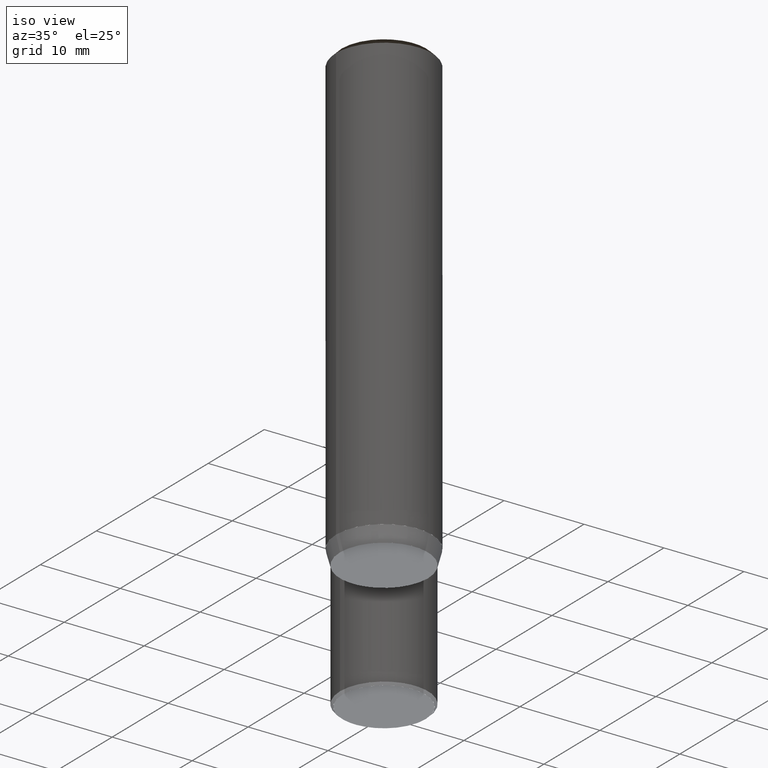
[diagram: clean part render]
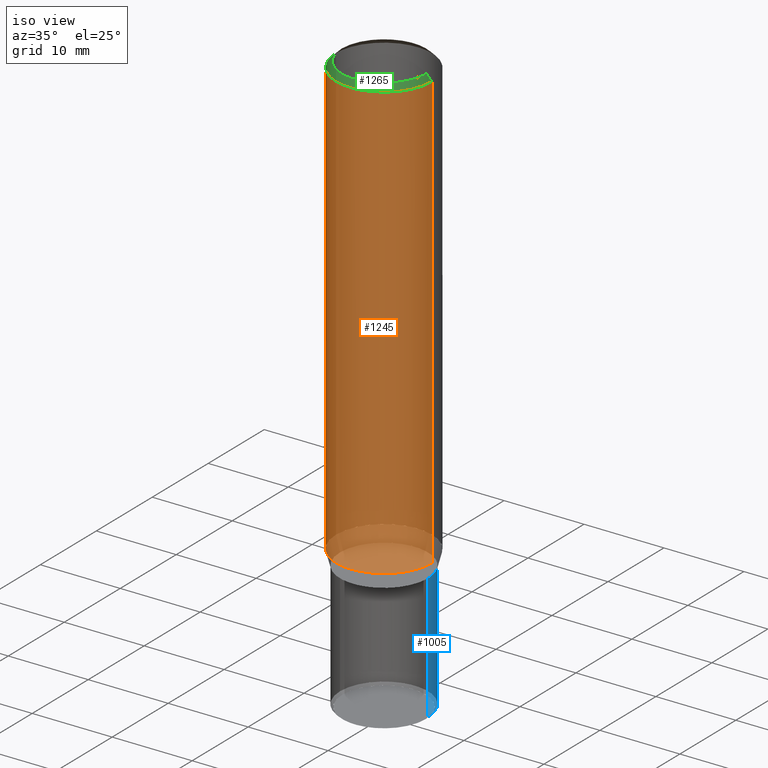
[diagram: same view with three faces highlighted in distinct colors, each labeled with its STEP entity id]
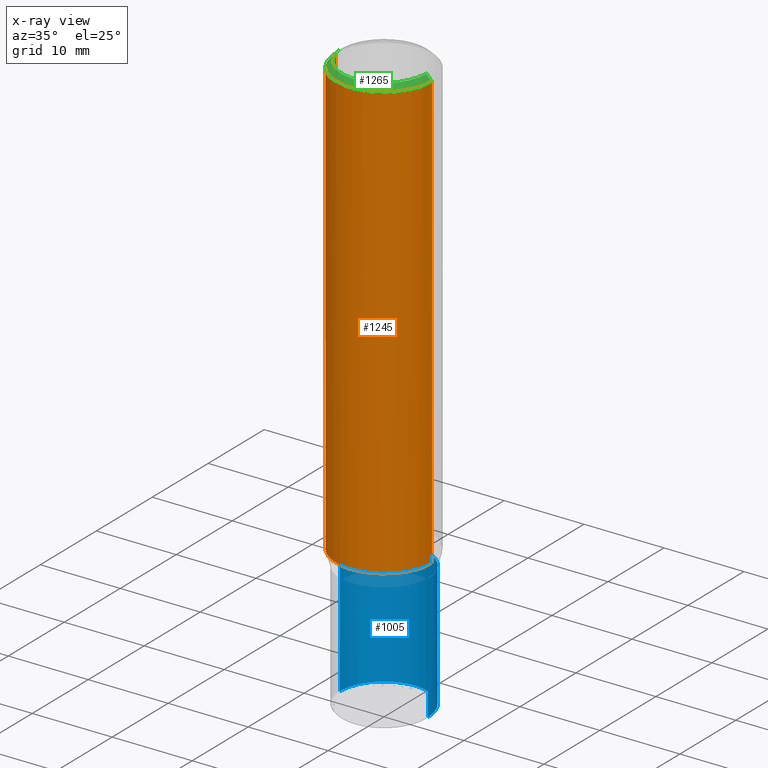
[diagram: x-ray of the same camera — body ghosted, the three highlighted faces saturated]
A machine part, iso view with three faces highlighted in distinct colors.
The next image is the same camera in x-ray (body ghosted, the three faces saturated) — at least one of them is partly hidden behind the body in this view.
Their STEP definitions:

[orange] entity #1245 — the highlighted face is a freeform B-spline surface patch.
#918=CARTESIAN_POINT('',(6.0,0.0,-0.0));
#922=CARTESIAN_POINT('',(-6.0,0.0,-0.0));
#923=CARTESIAN_POINT('',(6.0,0.0,54.43398022));
#927=CARTESIAN_POINT('',(-6.0,0.0,54.43398022));
#934=CARTESIAN_POINT('',(-6.0,-6.0,-0.0));
#935=CARTESIAN_POINT('',(0.0,-6.0,-0.0));
#936=CARTESIAN_POINT('',(6.0,-6.0,-0.0));
#937=CARTESIAN_POINT('',(-6.0,-6.0,54.43398022));
#938=CARTESIAN_POINT('',(0.0,-6.0,54.43398022));
#939=CARTESIAN_POINT('',(6.0,-6.0,54.43398022));
#1226=(
BOUNDED_SURFACE()
B_SPLINE_SURFACE(1,2,(
(#922,#934,#935,#936,#918),
(#927,#937,#938,#939,#923)
), .UNSPECIFIED.,.F.,.F.,.F.)
B_SPLINE_SURFACE_WITH_KNOTS((2,2),(3,2,3),(
0.0,1.0),(
0.0,0.5,1.0), .UNSPECIFIED.)
GEOMETRIC_REPRESENTATION_ITEM()
RATIONAL_B_SPLINE_SURFACE(((1.0,0.707106781187,1.0,0.707106781187,1.0),
(1.0,0.707106781187,1.0,0.707106781187,1.0)
))
REPRESENTATION_ITEM('')
SURFACE()
);
#1227=(
BOUNDED_CURVE()
B_SPLINE_CURVE(1,(#927,#922),.UNSPECIFIED.,.F.,.F.)
B_SPLINE_CURVE_WITH_KNOTS((2,2),
(0.0,1.0),.UNSPECIFIED.)
CURVE()
GEOMETRIC_REPRESENTATION_ITEM()
RATIONAL_B_SPLINE_CURVE((1.0,1.0))
REPRESENTATION_ITEM('')
);
#1228=(
BOUNDED_CURVE()
B_SPLINE_CURVE(2,(#922,#934,#935,#936,#918),.UNSPECIFIED.,.F.,.F.)
B_SPLINE_CURVE_WITH_KNOTS((3,2,3),
(0.0,0.5,1.0),.UNSPECIFIED.)
CURVE()
GEOMETRIC_REPRESENTATION_ITEM()
RATIONAL_B_SPLINE_CURVE((1.0,0.707106781187,1.0,0.707106781187,1.0))
REPRESENTATION_ITEM('')
);
#1229=(
BOUNDED_CURVE()
B_SPLINE_CURVE(1,(#918,#923),.UNSPECIFIED.,.F.,.F.)
B_SPLINE_CURVE_WITH_KNOTS((2,2),
(0.0,1.0),.UNSPECIFIED.)
CURVE()
GEOMETRIC_REPRESENTATION_ITEM()
RATIONAL_B_SPLINE_CURVE((1.0,1.0))
REPRESENTATION_ITEM('')
);
#1230=(
BOUNDED_CURVE()
B_SPLINE_CURVE(2,(#923,#939,#938,#937,#927),.UNSPECIFIED.,.F.,.F.)
B_SPLINE_CURVE_WITH_KNOTS((3,2,3),
(0.0,0.5,1.0),.UNSPECIFIED.)
CURVE()
GEOMETRIC_REPRESENTATION_ITEM()
RATIONAL_B_SPLINE_CURVE((1.0,0.707106781187,1.0,0.707106781187,1.0))
REPRESENTATION_ITEM('')
);
#1231=VERTEX_POINT('',#918);
#1232=VERTEX_POINT('',#922);
#1233=VERTEX_POINT('',#923);
#1234=VERTEX_POINT('',#927);
#1235=EDGE_CURVE('',#1234,#1232,#1227,.T.);
#1236=EDGE_CURVE('',#1232,#1231,#1228,.T.);
#1237=EDGE_CURVE('',#1231,#1233,#1229,.T.);
#1238=EDGE_CURVE('',#1233,#1234,#1230,.T.);
#1239=ORIENTED_EDGE('',*,*,#1235,.T.);
#1240=ORIENTED_EDGE('',*,*,#1236,.T.);
#1241=ORIENTED_EDGE('',*,*,#1237,.T.);
#1242=ORIENTED_EDGE('',*,*,#1238,.T.);
#1243=EDGE_LOOP('',(#1239,#1240,#1241,#1242));
#1244=FACE_OUTER_BOUND('',#1243,.T.);
#1245=ADVANCED_FACE('',(#1244),#1226,.T.);

[blue] entity #1005 — the highlighted face is a freeform B-spline surface patch.
#898=CARTESIAN_POINT('',(5.5,0.0,-17.56601978));
#899=CARTESIAN_POINT('',(5.5,5.5,-17.56601978));
#900=CARTESIAN_POINT('',(0.0,5.5,-17.56601978));
#901=CARTESIAN_POINT('',(-5.5,5.5,-17.56601978));
#902=CARTESIAN_POINT('',(-5.5,0.0,-17.56601978));
#903=CARTESIAN_POINT('',(5.5,0.0,-1.86601978));
#904=CARTESIAN_POINT('',(5.5,5.5,-1.86601978));
#905=CARTESIAN_POINT('',(0.0,5.5,-1.86601978));
#906=CARTESIAN_POINT('',(-5.5,5.5,-1.86601978));
#907=CARTESIAN_POINT('',(-5.5,0.0,-1.86601978));
#986=(
BOUNDED_SURFACE()
B_SPLINE_SURFACE(1,2,(
(#898,#899,#900,#901,#902),
(#903,#904,#905,#906,#907)
), .UNSPECIFIED.,.F.,.F.,.F.)
B_SPLINE_SURFACE_WITH_KNOTS((2,2),(3,2,3),(
0.0,1.0),(
0.0,0.5,1.0), .UNSPECIFIED.)
GEOMETRIC_REPRESENTATION_ITEM()
RATIONAL_B_SPLINE_SURFACE(((1.0,0.707106781187,1.0,0.707106781187,1.0),
(1.0,0.707106781187,1.0,0.707106781187,1.0)
))
REPRESENTATION_ITEM('')
SURFACE()
);
#987=(
BOUNDED_CURVE()
B_SPLINE_CURVE(2,(#903,#904,#905,#906,#907),.UNSPECIFIED.,.F.,.F.)
B_SPLINE_CURVE_WITH_KNOTS((3,2,3),
(0.0,0.5,1.0),.UNSPECIFIED.)
CURVE()
GEOMETRIC_REPRESENTATION_ITEM()
RATIONAL_B_SPLINE_CURVE((1.0,0.707106781187,1.0,0.707106781187,1.0))
REPRESENTATION_ITEM('')
);
#988=(
BOUNDED_CURVE()
B_SPLINE_CURVE(1,(#907,#902),.UNSPECIFIED.,.F.,.F.)
B_SPLINE_CURVE_WITH_KNOTS((2,2),
(0.0,1.0),.UNSPECIFIED.)
CURVE()
GEOMETRIC_REPRESENTATION_ITEM()
RATIONAL_B_SPLINE_CURVE((1.0,1.0))
REPRESENTATION_ITEM('')
);
#989=(
BOUNDED_CURVE()
B_SPLINE_CURVE(2,(#902,#901,#900,#899,#898),.UNSPECIFIED.,.F.,.F.)
B_SPLINE_CURVE_WITH_KNOTS((3,2,3),
(0.0,0.5,1.0),.UNSPECIFIED.)
CURVE()
GEOMETRIC_REPRESENTATION_ITEM()
RATIONAL_B_SPLINE_CURVE((1.0,0.707106781187,1.0,0.707106781187,1.0))
REPRESENTATION_ITEM('')
);
#990=(
BOUNDED_CURVE()
B_SPLINE_CURVE(1,(#898,#903),.UNSPECIFIED.,.F.,.F.)
B_SPLINE_CURVE_WITH_KNOTS((2,2),
(0.0,1.0),.UNSPECIFIED.)
CURVE()
GEOMETRIC_REPRESENTATION_ITEM()
RATIONAL_B_SPLINE_CURVE((1.0,1.0))
REPRESENTATION_ITEM('')
);
#991=VERTEX_POINT('',#898);
#992=VERTEX_POINT('',#902);
#993=VERTEX_POINT('',#903);
#994=VERTEX_POINT('',#907);
#995=EDGE_CURVE('',#993,#994,#987,.T.);
#996=EDGE_CURVE('',#994,#992,#988,.T.);
#997=EDGE_CURVE('',#992,#991,#989,.T.);
#998=EDGE_CURVE('',#991,#993,#990,.T.);
#999=ORIENTED_EDGE('',*,*,#995,.T.);
#1000=ORIENTED_EDGE('',*,*,#996,.T.);
#1001=ORIENTED_EDGE('',*,*,#997,.T.);
#1002=ORIENTED_EDGE('',*,*,#998,.T.);
#1003=EDGE_LOOP('',(#999,#1000,#1001,#1002));
#1004=FACE_OUTER_BOUND('',#1003,.T.);
#1005=ADVANCED_FACE('',(#1004),#986,.T.);

[green] entity #1265 — the highlighted face is a freeform B-spline surface patch.
#923=CARTESIAN_POINT('',(6.0,0.0,54.43398022));
#927=CARTESIAN_POINT('',(-6.0,0.0,54.43398022));
#928=CARTESIAN_POINT('',(5.3,0.0,55.13398022));
#932=CARTESIAN_POINT('',(-5.3,0.0,55.13398022));
#937=CARTESIAN_POINT('',(-6.0,-6.0,54.43398022));
#938=CARTESIAN_POINT('',(0.0,-6.0,54.43398022));
#939=CARTESIAN_POINT('',(6.0,-6.0,54.43398022));
#940=CARTESIAN_POINT('',(-5.3,-5.3,55.13398022));
#941=CARTESIAN_POINT('',(0.0,-5.3,55.13398022));
#942=CARTESIAN_POINT('',(5.3,-5.3,55.13398022));
#1246=(
BOUNDED_SURFACE()
B_SPLINE_SURFACE(1,2,(
(#927,#937,#938,#939,#923),
(#932,#940,#941,#942,#928)
), .UNSPECIFIED.,.F.,.F.,.F.)
B_SPLINE_SURFACE_WITH_KNOTS((2,2),(3,2,3),(
0.0,1.0),(
0.0,0.5,1.0), .UNSPECIFIED.)
GEOMETRIC_REPRESENTATION_ITEM()
RATIONAL_B_SPLINE_SURFACE(((1.0,0.707106781187,1.0,0.707106781187,1.0),
(1.0,0.707106781187,1.0,0.707106781187,1.0)
))
REPRESENTATION_ITEM('')
SURFACE()
);
#1247=(
BOUNDED_CURVE()
B_SPLINE_CURVE(2,(#932,#940,#941,#942,#928),.UNSPECIFIED.,.F.,.F.)
B_SPLINE_CURVE_WITH_KNOTS((3,2,3),
(0.0,0.5,1.0),.UNSPECIFIED.)
CURVE()
GEOMETRIC_REPRESENTATION_ITEM()
RATIONAL_B_SPLINE_CURVE((1.0,0.707106781187,1.0,0.707106781187,1.0))
REPRESENTATION_ITEM('')
);
#1248=(
BOUNDED_CURVE()
B_SPLINE_CURVE(1,(#928,#923),.UNSPECIFIED.,.F.,.F.)
B_SPLINE_CURVE_WITH_KNOTS((2,2),
(0.0,1.0),.UNSPECIFIED.)
CURVE()
GEOMETRIC_REPRESENTATION_ITEM()
RATIONAL_B_SPLINE_CURVE((1.0,1.0))
REPRESENTATION_ITEM('')
);
#1249=(
BOUNDED_CURVE()
B_SPLINE_CURVE(2,(#923,#939,#938,#937,#927),.UNSPECIFIED.,.F.,.F.)
B_SPLINE_CURVE_WITH_KNOTS((3,2,3),
(0.0,0.5,1.0),.UNSPECIFIED.)
CURVE()
GEOMETRIC_REPRESENTATION_ITEM()
RATIONAL_B_SPLINE_CURVE((1.0,0.707106781187,1.0,0.707106781187,1.0))
REPRESENTATION_ITEM('')
);
#1250=(
BOUNDED_CURVE()
B_SPLINE_CURVE(1,(#927,#932),.UNSPECIFIED.,.F.,.F.)
B_SPLINE_CURVE_WITH_KNOTS((2,2),
(0.0,1.0),.UNSPECIFIED.)
CURVE()
GEOMETRIC_REPRESENTATION_ITEM()
RATIONAL_B_SPLINE_CURVE((1.0,1.0))
REPRESENTATION_ITEM('')
);
#1251=VERTEX_POINT('',#923);
#1252=VERTEX_POINT('',#927);
#1253=VERTEX_POINT('',#928);
#1254=VERTEX_POINT('',#932);
#1255=EDGE_CURVE('',#1254,#1253,#1247,.T.);
#1256=EDGE_CURVE('',#1253,#1251,#1248,.T.);
#1257=EDGE_CURVE('',#1251,#1252,#1249,.T.);
#1258=EDGE_CURVE('',#1252,#1254,#1250,.T.);
#1259=ORIENTED_EDGE('',*,*,#1255,.T.);
#1260=ORIENTED_EDGE('',*,*,#1256,.T.);
#1261=ORIENTED_EDGE('',*,*,#1257,.T.);
#1262=ORIENTED_EDGE('',*,*,#1258,.T.);
#1263=EDGE_LOOP('',(#1259,#1260,#1261,#1262));
#1264=FACE_OUTER_BOUND('',#1263,.T.);
#1265=ADVANCED_FACE('',(#1264),#1246,.T.);